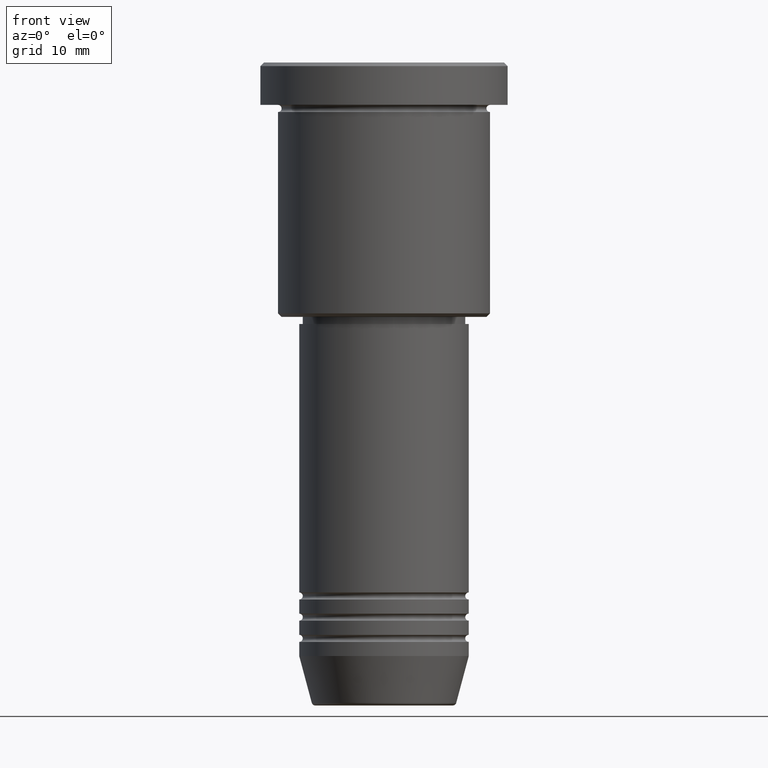
[diagram: clean part render]
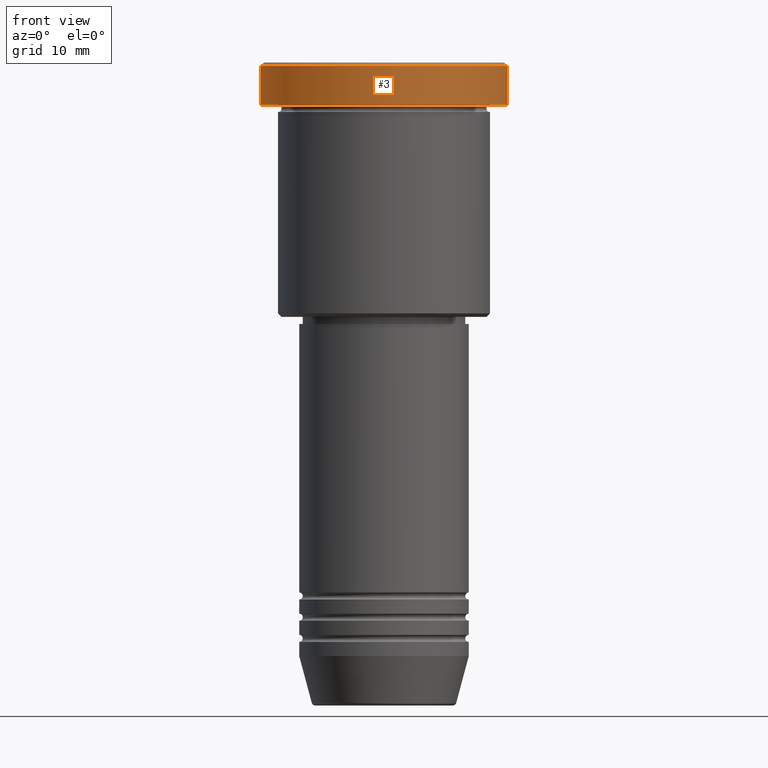
[diagram: same view with one face highlighted and labeled with its STEP entity id]
A machine part, front view. The second image highlights one B-rep face of the part: STEP entity #3.
In plain terms, the highlighted cylindrical surface (partial cylindrical patch) has radius 17.5 mm, axis along (-0, -0, 1).
Its self-contained STEP definition (entity closure, byte-faithful):
#3 = ADVANCED_FACE ( 'NONE', ( #894 ), #1168, .T. ) ;
#5 = AXIS2_PLACEMENT_3D ( 'NONE', #978, #58, #172 ) ;
#19 = VERTEX_POINT ( 'NONE', #635 ) ;
#27 = AXIS2_PLACEMENT_3D ( 'NONE', #575, #384, #753 ) ;
#33 = ORIENTED_EDGE ( 'NONE', *, *, #733, .F. ) ;
#58 = DIRECTION ( 'NONE',  ( -0.000000000000000000, -0.000000000000000000, 1.000000000000000000 ) ) ;
#92 = CARTESIAN_POINT ( 'NONE',  ( -17.50000000000000000, 2.143131898507868248E-15, -5.999999999999995559 ) ) ;
#105 = VECTOR ( 'NONE', #193, 1000.000000000000000 ) ;
#158 = DIRECTION ( 'NONE',  ( -0.000000000000000000, -0.000000000000000000, 1.000000000000000000 ) ) ;
#172 = DIRECTION ( 'NONE',  ( 1.000000000000000000, 0.000000000000000000, 0.000000000000000000 ) ) ;
#180 = CARTESIAN_POINT ( 'NONE',  ( 0.000000000000000000, 0.000000000000000000, -5.999999999999995559 ) ) ;
#193 = DIRECTION ( 'NONE',  ( -0.000000000000000000, -0.000000000000000000, 1.000000000000000000 ) ) ;
#270 = AXIS2_PLACEMENT_3D ( 'NONE', #180, #458, #660 ) ;
#298 = CIRCLE ( 'NONE', #270, 17.50000000000000000 ) ;
#345 = EDGE_CURVE ( 'NONE', #19, #806, #801, .T. ) ;
#384 = DIRECTION ( 'NONE',  ( 0.000000000000000000, 0.000000000000000000, -1.000000000000000000 ) ) ;
#430 = CARTESIAN_POINT ( 'NONE',  ( -17.50000000000000000, 2.143131898507868248E-15, 0.000000000000000000 ) ) ;
#458 = DIRECTION ( 'NONE',  ( -0.000000000000000000, -0.000000000000000000, 1.000000000000000000 ) ) ;
#476 = ORIENTED_EDGE ( 'NONE', *, *, #696, .T. ) ;
#499 = ORIENTED_EDGE ( 'NONE', *, *, #345, .T. ) ;
#521 = CARTESIAN_POINT ( 'NONE',  ( 17.50000000000000000, 0.000000000000000000, -0.5000000000000142109 ) ) ;
#540 = CARTESIAN_POINT ( 'NONE',  ( -17.50000000000000000, 2.143131898507868248E-15, -0.5000000000000142109 ) ) ;
#575 = CARTESIAN_POINT ( 'NONE',  ( 0.000000000000000000, 0.000000000000000000, -0.5000000000000142109 ) ) ;
#631 = LINE ( 'NONE', #430, #738 ) ;
#635 = CARTESIAN_POINT ( 'NONE',  ( 17.50000000000000000, 0.000000000000000000, -5.999999999999995559 ) ) ;
#646 = CARTESIAN_POINT ( 'NONE',  ( 17.50000000000000000, 0.000000000000000000, 0.000000000000000000 ) ) ;
#660 = DIRECTION ( 'NONE',  ( 1.000000000000000000, 0.000000000000000000, 0.000000000000000000 ) ) ;
#672 = ORIENTED_EDGE ( 'NONE', *, *, #898, .T. ) ;
#696 = EDGE_CURVE ( 'NONE', #806, #840, #1061, .T. ) ;
#733 = EDGE_CURVE ( 'NONE', #932, #840, #631, .T. ) ;
#738 = VECTOR ( 'NONE', #158, 1000.000000000000000 ) ;
#753 = DIRECTION ( 'NONE',  ( 1.000000000000000000, 0.000000000000000000, 0.000000000000000000 ) ) ;
#801 = LINE ( 'NONE', #646, #105 ) ;
#806 = VERTEX_POINT ( 'NONE', #521 ) ;
#840 = VERTEX_POINT ( 'NONE', #540 ) ;
#894 = FACE_OUTER_BOUND ( 'NONE', #1118, .T. ) ;
#898 = EDGE_CURVE ( 'NONE', #932, #19, #298, .T. ) ;
#932 = VERTEX_POINT ( 'NONE', #92 ) ;
#978 = CARTESIAN_POINT ( 'NONE',  ( 0.000000000000000000, 0.000000000000000000, 0.000000000000000000 ) ) ;
#1061 = CIRCLE ( 'NONE', #27, 17.50000000000000000 ) ;
#1118 = EDGE_LOOP ( 'NONE', ( #33, #672, #499, #476 ) ) ;
#1168 = CYLINDRICAL_SURFACE ( 'NONE', #5, 17.50000000000000000 ) ;